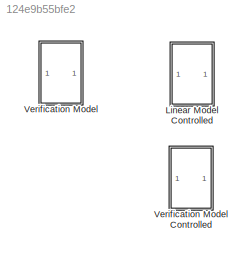
MODEL slx_124e9b55bfe2
KIND model
CONFIG AbsTol = auto
CONFIG EnableMultiTasking = off
CONFIG FixedStep = auto
CONFIG MaxStep = auto
CONFIG MinStep = auto
CONFIG RelTol = 1e-3
CONFIG SampleTimeConstraint = Unconstrained
CONFIG Solver = VariableStepAuto
CONFIG SolverName = VariableStepAuto
CONFIG StartTime = 0.0
CONFIG StopTime = 15
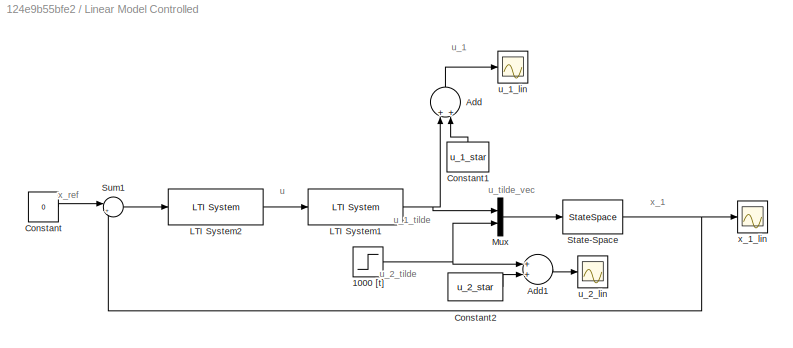
BLOCK [SubSystem] Linear Model Controlled
  Commented = on
  Ports = []
  RequestExecContextInheritance = off
BLOCK [Step] Linear Model Controlled/1000 [t]
  After = 1000 * g
  SampleTime = 0
  Time = 0
BLOCK [Sum] Linear Model Controlled/Add
  InputSameDT = off
  OutDataTypeStr = Inherit: Inherit via internal rule
  Ports = [2, 1]
  SaturateOnIntegerOverflow = off
BLOCK [Sum] Linear Model Controlled/Add1
  Commented = on
  InputSameDT = off
  OutDataTypeStr = Inherit: Inherit via internal rule
  Ports = [2, 1]
  SaturateOnIntegerOverflow = off
BLOCK [Constant] Linear Model Controlled/Constant
  Value = 0
BLOCK [Constant] Linear Model Controlled/Constant1
  Value = u_1_star
BLOCK [Constant] Linear Model Controlled/Constant2
  Commented = on
  Value = u_2_star
BLOCK [Reference] Linear Model Controlled/LTI System1  REF=cstblocks/LTI System
  Ports = [1, 1]
  SourceBlock = cstblocks/LTI System
  SourceProductBaseCode = CT
  SourceProductName = Control System Toolbox
  SourceType = LTI Block
BLOCK [Reference] Linear Model Controlled/LTI System2  REF=cstblocks/LTI System
  Ports = [1, 1]
  SourceBlock = cstblocks/LTI System
  SourceProductBaseCode = CT
  SourceProductName = Control System Toolbox
  SourceType = LTI Block
BLOCK [Mux] Linear Model Controlled/Mux
  DisplayOption = bar
  Inputs = 2
  Ports = [2, 1]
BLOCK [StateSpace] Linear Model Controlled/State-Space
  A = A_sys
  B = B_sys
  C = C_sys
  D = D_sys
  InitialCondition = 0
  Ports = [1, 1]
BLOCK [Sum] Linear Model Controlled/Sum1
  IconShape = round
  InputSameDT = off
  Inputs = |+-
  OutDataTypeStr = Inherit: Inherit via internal rule
  Ports = [2, 1]
  SaturateOnIntegerOverflow = off
BLOCK [Scope] Linear Model Controlled/u_1_lin
  Floating = off
  NumInputPorts = 1
  Ports = [1]
  ScopeSpecificationString = Simulink.scopes.TimeScopeBlockCfg('CurrentConfiguration', extmgr.ConfigurationSet(extmgr.Configuration('Core','General UI',true),extmgr.Configuration('Core','Source UI',true),extmgr.Configuration('Sources','WiredSimulink',true,'DataLoggingVariableName','u_1_lin','DataLoggingSaveFormat','Array','DataLoggingLimitDataPoints',true,'DataLoggingDecimation','1','DataLogging',true),extmgr.Configuration('V...<+1649ch>
BLOCK [Scope] Linear Model Controlled/u_2_lin
  Commented = on
  Floating = off
  NumInputPorts = 1
  Ports = [1]
  ScopeSpecificationString = Simulink.scopes.TimeScopeBlockCfg('CurrentConfiguration', extmgr.ConfigurationSet(extmgr.Configuration('Core','General UI',true),extmgr.Configuration('Core','Source UI',true),extmgr.Configuration('Sources','WiredSimulink',true,'DataLoggingVariableName','u_2_lin','DataLoggingSaveFormat','Array','DataLoggingLimitDataPoints',true,'DataLoggingDecimation','1','DataLogging',true),extmgr.Configuration('V...<+1646ch>
BLOCK [Scope] Linear Model Controlled/x_1_lin
  Floating = off
  NumInputPorts = 1
  Ports = [1]
  ScopeSpecificationString = Simulink.scopes.TimeScopeBlockCfg('CurrentConfiguration', extmgr.ConfigurationSet(extmgr.Configuration('Core','General UI',true),extmgr.Configuration('Core','Source UI',true),extmgr.Configuration('Sources','WiredSimulink',true,'DataLoggingVariableName','x_1_lin','DataLoggingSaveFormat','Array','DataLoggingLimitDataPoints',true,'DataLoggingDecimation','1','DataLogging',true),extmgr.Configuration('V...<+1655ch>
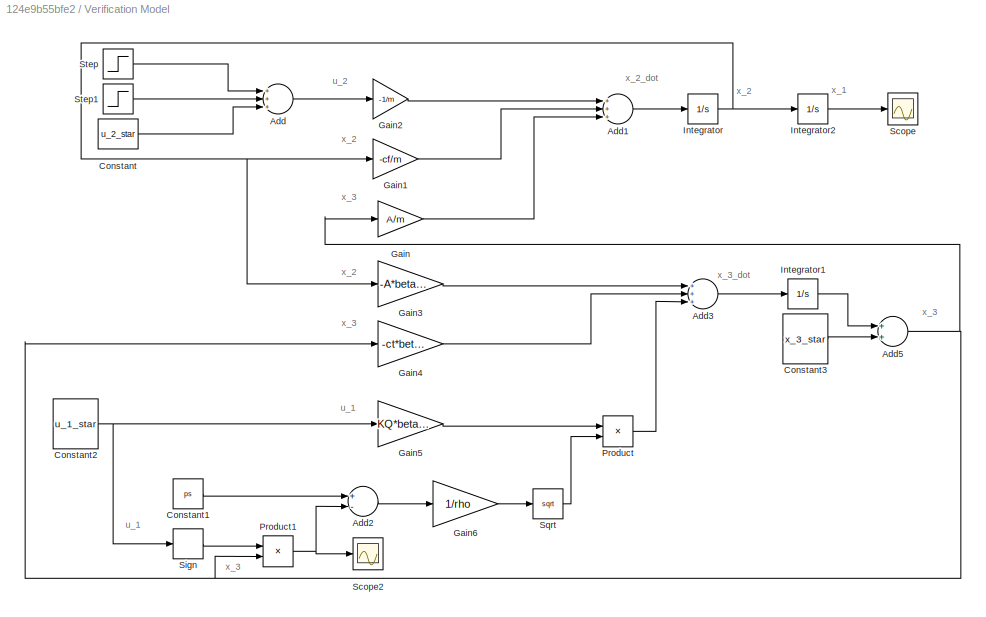
BLOCK [SubSystem] Verification Model
  Ports = []
  RequestExecContextInheritance = off
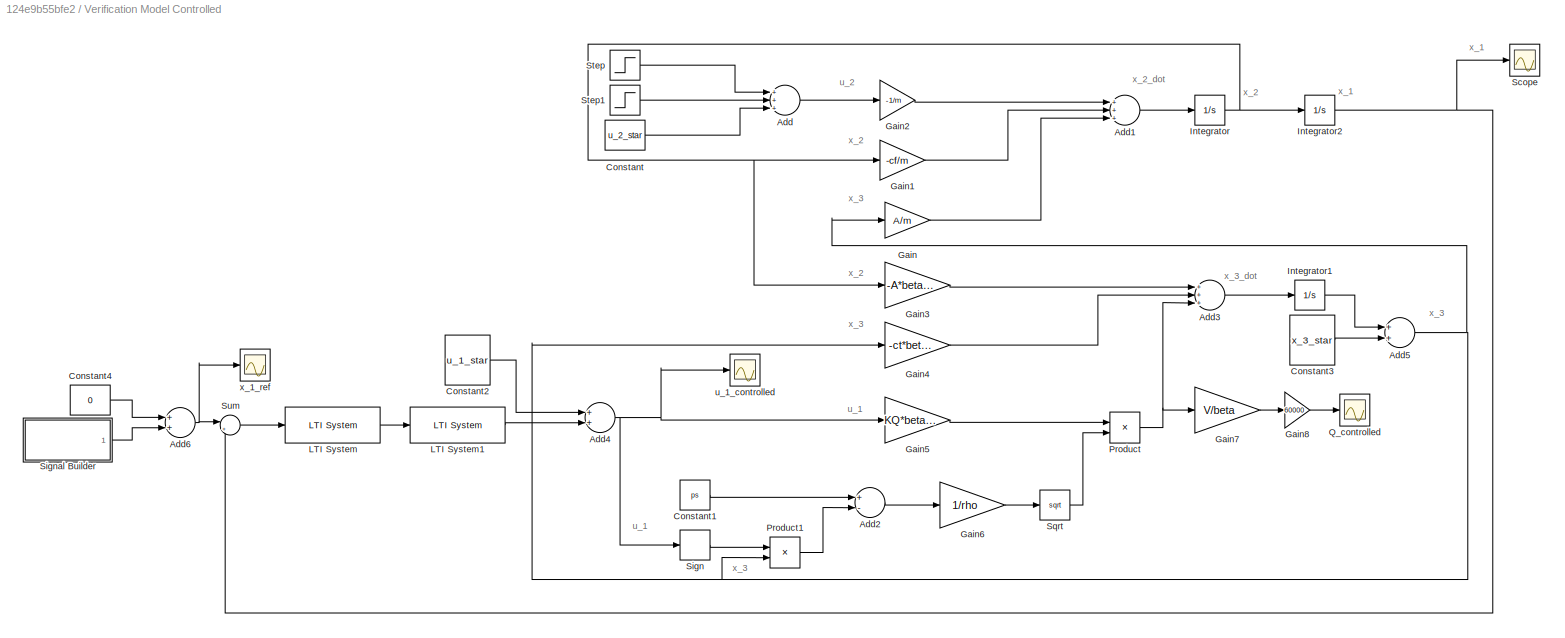
BLOCK [SubSystem] Verification Model Controlled
  Commented = on
  Ports = []
  RequestExecContextInheritance = off
BLOCK [Sum] Verification Model Controlled/Add
  InputSameDT = off
  Inputs = +++
  OutDataTypeStr = Inherit: Inherit via internal rule
  Ports = [3, 1]
  SaturateOnIntegerOverflow = off
BLOCK [Sum] Verification Model Controlled/Add1
  InputSameDT = off
  Inputs = +++
  OutDataTypeStr = Inherit: Inherit via internal rule
  Ports = [3, 1]
  SaturateOnIntegerOverflow = off
BLOCK [Sum] Verification Model Controlled/Add2
  InputSameDT = off
  Inputs = +-
  OutDataTypeStr = Inherit: Inherit via internal rule
  Ports = [2, 1]
  SaturateOnIntegerOverflow = off
BLOCK [Sum] Verification Model Controlled/Add3
  InputSameDT = off
  Inputs = +++
  OutDataTypeStr = Inherit: Inherit via internal rule
  Ports = [3, 1]
  SaturateOnIntegerOverflow = off
BLOCK [Sum] Verification Model Controlled/Add4
  InputSameDT = off
  OutDataTypeStr = Inherit: Inherit via internal rule
  Ports = [2, 1]
  SaturateOnIntegerOverflow = off
BLOCK [Sum] Verification Model Controlled/Add5
  InputSameDT = off
  OutDataTypeStr = Inherit: Inherit via internal rule
  Ports = [2, 1]
  SaturateOnIntegerOverflow = off
BLOCK [Sum] Verification Model Controlled/Add6
  InputSameDT = off
  OutDataTypeStr = Inherit: Inherit via internal rule
  Ports = [2, 1]
  SaturateOnIntegerOverflow = off
BLOCK [Constant] Verification Model Controlled/Constant
  Value = u_2_star
BLOCK [Constant] Verification Model Controlled/Constant1
  Value = ps
BLOCK [Constant] Verification Model Controlled/Constant2
  Value = u_1_star
BLOCK [Constant] Verification Model Controlled/Constant3
  Value = x_3_star
BLOCK [Constant] Verification Model Controlled/Constant4
  Value = 0
BLOCK [Gain] Verification Model Controlled/Gain
  Gain = A/m
  OutDataTypeStr = Inherit: Inherit via internal rule
  ParamDataTypeStr = Inherit: Inherit via internal rule
  SaturateOnIntegerOverflow = off
BLOCK [Gain] Verification Model Controlled/Gain1
  Gain = -cf/m
  OutDataTypeStr = Inherit: Inherit via internal rule
  ParamDataTypeStr = Inherit: Inherit via internal rule
  SaturateOnIntegerOverflow = off
BLOCK [Gain] Verification Model Controlled/Gain2
  Gain = -1/m
  OutDataTypeStr = Inherit: Inherit via internal rule
  ParamDataTypeStr = Inherit: Inherit via internal rule
  SaturateOnIntegerOverflow = off
BLOCK [Gain] Verification Model Controlled/Gain3
  Gain = -A*beta/V
  OutDataTypeStr = Inherit: Inherit via internal rule
  ParamDataTypeStr = Inherit: Inherit via internal rule
  SaturateOnIntegerOverflow = off
BLOCK [Gain] Verification Model Controlled/Gain4
  Gain = -ct*beta/V
  OutDataTypeStr = Inherit: Inherit via internal rule
  ParamDataTypeStr = Inherit: Inherit via internal rule
  SaturateOnIntegerOverflow = off
BLOCK [Gain] Verification Model Controlled/Gain5
  Gain = KQ*beta/V
  OutDataTypeStr = Inherit: Inherit via internal rule
  ParamDataTypeStr = Inherit: Inherit via internal rule
  SaturateOnIntegerOverflow = off
BLOCK [Gain] Verification Model Controlled/Gain6
  Gain = 1/rho
  OutDataTypeStr = Inherit: Inherit via internal rule
  ParamDataTypeStr = Inherit: Inherit via internal rule
  SaturateOnIntegerOverflow = off
BLOCK [Gain] Verification Model Controlled/Gain7
  Gain = V/beta
  OutDataTypeStr = Inherit: Inherit via internal rule
  ParamDataTypeStr = Inherit: Inherit via internal rule
  SaturateOnIntegerOverflow = off
BLOCK [Gain] Verification Model Controlled/Gain8
  Gain = 60000
  OutDataTypeStr = Inherit: Inherit via internal rule
  ParamDataTypeStr = Inherit: Inherit via internal rule
  SaturateOnIntegerOverflow = off
BLOCK [Integrator] Verification Model Controlled/Integrator
  Ports = [1, 1]
BLOCK [Integrator] Verification Model Controlled/Integrator1
  Ports = [1, 1]
BLOCK [Integrator] Verification Model Controlled/Integrator2
  Ports = [1, 1]
BLOCK [Reference] Verification Model Controlled/LTI System  REF=cstblocks/LTI System
  Ports = [1, 1]
  SourceBlock = cstblocks/LTI System
  SourceProductBaseCode = CT
  SourceProductName = Control System Toolbox
  SourceType = LTI Block
BLOCK [Reference] Verification Model Controlled/LTI System1  REF=cstblocks/LTI System
  Ports = [1, 1]
  SourceBlock = cstblocks/LTI System
  SourceProductBaseCode = CT
  SourceProductName = Control System Toolbox
  SourceType = LTI Block
BLOCK [Product] Verification Model Controlled/Product
  InputSameDT = off
  OutDataTypeStr = Inherit: Inherit via internal rule
  Ports = [2, 1]
  RndMeth = Floor
  SaturateOnIntegerOverflow = off
BLOCK [Product] Verification Model Controlled/Product1
  InputSameDT = off
  OutDataTypeStr = Inherit: Inherit via internal rule
  Ports = [2, 1]
  RndMeth = Floor
  SaturateOnIntegerOverflow = off
BLOCK [Scope] Verification Model Controlled/Q_controlled
  Floating = off
  NumInputPorts = 1
  Ports = [1]
  ScopeSpecificationString = Simulink.scopes.TimeScopeBlockCfg('CurrentConfiguration', extmgr.ConfigurationSet(extmgr.Configuration('Core','General UI',true),extmgr.Configuration('Core','Source UI',true),extmgr.Configuration('Sources','WiredSimulink',true,'DataLoggingVariableName','Q_controlled','DataLogging',true,'DataLoggingSaveFormat','Array'),extmgr.Configuration('Visuals','Time Domain',true,'SerializedDisplays',{struct('...<+1450ch>
BLOCK [Scope] Verification Model Controlled/Scope
  Floating = off
  NumInputPorts = 1
  Ports = [1]
  ScopeSpecificationString = Simulink.scopes.TimeScopeBlockCfg('CurrentConfiguration', extmgr.ConfigurationSet(extmgr.Configuration('Core','General UI',true),extmgr.Configuration('Core','Source UI',true),extmgr.Configuration('Sources','WiredSimulink',true,'DataLoggingVariableName','x_1_ver_controlled','DataLogging',true,'DataLoggingSaveFormat','Array'),extmgr.Configuration('Visuals','Time Domain',true,'SerializedDisplays',{st...<+1476ch>
BLOCK [Signum] Verification Model Controlled/Sign
  ZeroCross = off
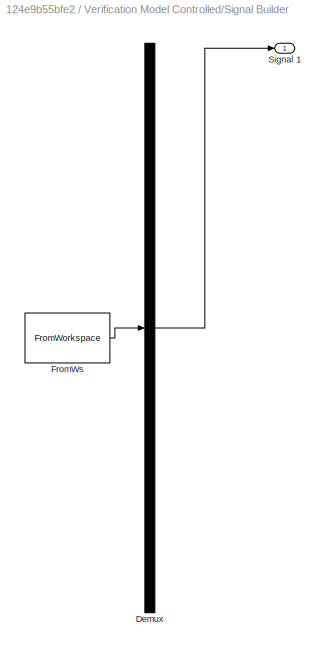
BLOCK [SubSystem] Verification Model Controlled/Signal Builder
  ClipboardFcn = sigbuilder_block('clipboard');
  CloseFcn = sigbuilder_block('close');
  ContinueFcn = sigbuilder_block('continue');
  CopyFcn = sigbuilder_block('copy');
  DeleteFcn = sigbuilder_block('delete');
  LoadFcn = sigbuilder_block('load');
  MaskHideContents = on
  ModelCloseFcn = sigbuilder_block('modelClose');
  NameChangeFcn = sigbuilder_block('namechange');
  OpenFcn = sigbuilder_block('open',[437.6 199.2 550.4 400 ]);
  PauseFcn = sigbuilder_block('pause');
  Ports = [0, 1]
  PreSaveFcn = sigbuilder_block('preSave');
  RequestExecContextInheritance = off
  StartFcn = sigbuilder_block('start');
  StopFcn = sigbuilder_block('stop');
  Tag = STV Subsys
BLOCK [Demux] Verification Model Controlled/Signal Builder/Demux
  Outputs = 1
  Ports = [1, 1]
  Tag = STV Demux
BLOCK [FromWorkspace] Verification Model Controlled/Signal Builder/FromWs
  SampleTime = 0
  Tag = STV FromWs
  VariableName = tuvar
  ZeroCross = on
BLOCK [Outport] Verification Model Controlled/Signal Builder/Signal 1
  IconDisplay = Port number
  Tag = STV Outport
BLOCK [Sqrt] Verification Model Controlled/Sqrt
BLOCK [Step] Verification Model Controlled/Step
  After = 1000 * g
  SampleTime = 0
  Time = 0
BLOCK [Step] Verification Model Controlled/Step1
  After = -1000 * g
  Commented = on
  SampleTime = 0
BLOCK [Sum] Verification Model Controlled/Sum
  IconShape = round
  InputSameDT = off
  Inputs = |+-
  OutDataTypeStr = Inherit: Inherit via internal rule
  Ports = [2, 1]
  SaturateOnIntegerOverflow = off
BLOCK [Scope] Verification Model Controlled/u_1_controlled
  Floating = off
  NumInputPorts = 1
  Ports = [1]
  ScopeSpecificationString = Simulink.scopes.TimeScopeBlockCfg('CurrentConfiguration', extmgr.ConfigurationSet(extmgr.Configuration('Core','General UI',true),extmgr.Configuration('Core','Source UI',true),extmgr.Configuration('Sources','WiredSimulink',true,'DataLoggingVariableName','u_1_controlled','DataLogging',true,'DataLoggingSaveFormat','Array'),extmgr.Configuration('Visuals','Time Domain',true,'SerializedDisplays',{struct...<+1447ch>
BLOCK [Scope] Verification Model Controlled/x_1_ref
  Floating = off
  NumInputPorts = 1
  Ports = [1]
  ScopeSpecificationString = Simulink.scopes.TimeScopeBlockCfg('CurrentConfiguration', extmgr.ConfigurationSet(extmgr.Configuration('Core','General UI',true),extmgr.Configuration('Core','Source UI',true),extmgr.Configuration('Sources','WiredSimulink',true,'DataLoggingVariableName','x_1_ref','DataLogging',true,'DataLoggingSaveFormat','Array'),extmgr.Configuration('Visuals','Time Domain',true,'SerializedDisplays',{struct('MinYL...<+1463ch>
BLOCK [Sum] Verification Model/Add
  InputSameDT = off
  Inputs = +++
  OutDataTypeStr = Inherit: Inherit via internal rule
  Ports = [3, 1]
  SaturateOnIntegerOverflow = off
BLOCK [Sum] Verification Model/Add1
  InputSameDT = off
  Inputs = +++
  OutDataTypeStr = Inherit: Inherit via internal rule
  Ports = [3, 1]
  SaturateOnIntegerOverflow = off
BLOCK [Sum] Verification Model/Add2
  InputSameDT = off
  Inputs = +-
  OutDataTypeStr = Inherit: Inherit via internal rule
  Ports = [2, 1]
  SaturateOnIntegerOverflow = off
BLOCK [Sum] Verification Model/Add3
  InputSameDT = off
  Inputs = +++
  OutDataTypeStr = Inherit: Inherit via internal rule
  Ports = [3, 1]
  SaturateOnIntegerOverflow = off
BLOCK [Sum] Verification Model/Add5
  InputSameDT = off
  OutDataTypeStr = Inherit: Inherit via internal rule
  Ports = [2, 1]
  SaturateOnIntegerOverflow = off
BLOCK [Constant] Verification Model/Constant
  Value = u_2_star
BLOCK [Constant] Verification Model/Constant1
  Value = ps
BLOCK [Constant] Verification Model/Constant2
  Value = u_1_star
BLOCK [Constant] Verification Model/Constant3
  Value = x_3_star
BLOCK [Gain] Verification Model/Gain
  Gain = A/m
  OutDataTypeStr = Inherit: Inherit via internal rule
  ParamDataTypeStr = Inherit: Inherit via internal rule
  SaturateOnIntegerOverflow = off
BLOCK [Gain] Verification Model/Gain1
  Gain = -cf/m
  OutDataTypeStr = Inherit: Inherit via internal rule
  ParamDataTypeStr = Inherit: Inherit via internal rule
  SaturateOnIntegerOverflow = off
BLOCK [Gain] Verification Model/Gain2
  Gain = -1/m
  OutDataTypeStr = Inherit: Inherit via internal rule
  ParamDataTypeStr = Inherit: Inherit via internal rule
  SaturateOnIntegerOverflow = off
BLOCK [Gain] Verification Model/Gain3
  Gain = -A*beta/V
  OutDataTypeStr = Inherit: Inherit via internal rule
  ParamDataTypeStr = Inherit: Inherit via internal rule
  SaturateOnIntegerOverflow = off
BLOCK [Gain] Verification Model/Gain4
  Gain = -ct*beta/V
  OutDataTypeStr = Inherit: Inherit via internal rule
  ParamDataTypeStr = Inherit: Inherit via internal rule
  SaturateOnIntegerOverflow = off
BLOCK [Gain] Verification Model/Gain5
  Gain = KQ*beta/V
  OutDataTypeStr = Inherit: Inherit via internal rule
  ParamDataTypeStr = Inherit: Inherit via internal rule
  SaturateOnIntegerOverflow = off
BLOCK [Gain] Verification Model/Gain6
  Gain = 1/rho
  OutDataTypeStr = Inherit: Inherit via internal rule
  ParamDataTypeStr = Inherit: Inherit via internal rule
  SaturateOnIntegerOverflow = off
BLOCK [Integrator] Verification Model/Integrator
  Ports = [1, 1]
BLOCK [Integrator] Verification Model/Integrator1
  Ports = [1, 1]
BLOCK [Integrator] Verification Model/Integrator2
  Ports = [1, 1]
BLOCK [Product] Verification Model/Product
  InputSameDT = off
  OutDataTypeStr = Inherit: Inherit via internal rule
  Ports = [2, 1]
  RndMeth = Floor
  SaturateOnIntegerOverflow = off
BLOCK [Product] Verification Model/Product1
  InputSameDT = off
  OutDataTypeStr = Inherit: Inherit via internal rule
  Ports = [2, 1]
  RndMeth = Floor
  SaturateOnIntegerOverflow = off
BLOCK [Scope] Verification Model/Scope
  Floating = off
  NumInputPorts = 1
  Ports = [1]
  ScopeSpecificationString = Simulink.scopes.TimeScopeBlockCfg('CurrentConfiguration', extmgr.ConfigurationSet(extmgr.Configuration('Core','General UI',true),extmgr.Configuration('Core','Source UI',true),extmgr.Configuration('Sources','WiredSimulink',true,'DataLoggingVariableName','x_1','DataLogging',true,'DataLoggingSaveFormat','Array'),extmgr.Configuration('Visuals','Time Domain',true,'SerializedDisplays',{struct('MinYLimRe...<+1461ch>
BLOCK [Scope] Verification Model/Scope2
  Floating = off
  NumInputPorts = 1
  Ports = [1]
  ScopeSpecificationString = Simulink.scopes.TimeScopeBlockCfg('CurrentConfiguration', extmgr.ConfigurationSet(extmgr.Configuration('Core','General UI',true),extmgr.Configuration('Core','Source UI',true),extmgr.Configuration('Sources','WiredSimulink',true,'DataLoggingVariableName','ScopeData2'),extmgr.Configuration('Visuals','Time Domain',true,'SerializedDisplays',{struct('MinYLimReal','-726044.34692','MaxYLimReal','2913419.1...<+1462ch>
BLOCK [Signum] Verification Model/Sign
  ZeroCross = off
BLOCK [Sqrt] Verification Model/Sqrt
BLOCK [Step] Verification Model/Step
  After = 1000 * g
  SampleTime = 0
  Time = 0
BLOCK [Step] Verification Model/Step1
  After = -1000 * g
  SampleTime = 0
  Time = 5
ANNOTATION Linear Model Controlled: u
ANNOTATION Linear Model Controlled: u_1
ANNOTATION Linear Model Controlled: u_1_tilde
ANNOTATION Linear Model Controlled: u_2_tilde
ANNOTATION Linear Model Controlled: u_tilde_vec
ANNOTATION Linear Model Controlled: x_1
ANNOTATION Linear Model Controlled: x_ref
ANNOTATION Verification Model: u_1
ANNOTATION Verification Model: u_2
ANNOTATION Verification Model: x_1
ANNOTATION Verification Model: x_2
ANNOTATION Verification Model: x_2_dot
ANNOTATION Verification Model: x_3
ANNOTATION Verification Model: x_3_dot
ANNOTATION Verification Model Controlled: x_1
ANNOTATION Verification Model Controlled: u_1
ANNOTATION Verification Model Controlled: u_2
ANNOTATION Verification Model Controlled: x_2
ANNOTATION Verification Model Controlled: x_2_dot
ANNOTATION Verification Model Controlled: x_3
ANNOTATION Verification Model Controlled: x_3_dot
NET Linear Model Controlled/1000 [t]:1 -> Linear Model Controlled/Add1:1, Linear Model Controlled/Mux:2
LINE Linear Model Controlled/Add1:1 -> Linear Model Controlled/u_2_lin:1
LINE Linear Model Controlled/Add:1 -> Linear Model Controlled/u_1_lin:1
LINE Linear Model Controlled/Constant1:1 -> Linear Model Controlled/Add:2
LINE Linear Model Controlled/Constant2:1 -> Linear Model Controlled/Add1:2
LINE Linear Model Controlled/Constant:1 -> Linear Model Controlled/Sum1:1
NET Linear Model Controlled/LTI System1:1 -> Linear Model Controlled/Add:1, Linear Model Controlled/Mux:1
LINE Linear Model Controlled/LTI System2:1 -> Linear Model Controlled/LTI System1:1
LINE Linear Model Controlled/Mux:1 -> Linear Model Controlled/State-Space:1
NET Linear Model Controlled/State-Space:1 -> Linear Model Controlled/Sum1:2, Linear Model Controlled/x_1_lin:1
LINE Linear Model Controlled/Sum1:1 -> Linear Model Controlled/LTI System2:1
LINE Verification Model Controlled/Add1:1 -> Verification Model Controlled/Integrator:1
LINE Verification Model Controlled/Add2:1 -> Verification Model Controlled/Gain6:1
LINE Verification Model Controlled/Add3:1 -> Verification Model Controlled/Integrator1:1
NET Verification Model Controlled/Add4:1 -> Verification Model Controlled/Gain5:1, Verification Model Controlled/Sign:1, Verification Model Controlled/u_1_controlled:1
NET Verification Model Controlled/Add5:1 -> Verification Model Controlled/Gain4:1, Verification Model Controlled/Gain:1, Verification Model Controlled/Product1:2
NET Verification Model Controlled/Add6:1 -> Verification Model Controlled/Sum:1, Verification Model Controlled/x_1_ref:1
LINE Verification Model Controlled/Add:1 -> Verification Model Controlled/Gain2:1
LINE Verification Model Controlled/Constant1:1 -> Verification Model Controlled/Add2:1
LINE Verification Model Controlled/Constant2:1 -> Verification Model Controlled/Add4:1
LINE Verification Model Controlled/Constant3:1 -> Verification Model Controlled/Add5:2
LINE Verification Model Controlled/Constant4:1 -> Verification Model Controlled/Add6:1
LINE Verification Model Controlled/Constant:1 -> Verification Model Controlled/Add:3
LINE Verification Model Controlled/Gain1:1 -> Verification Model Controlled/Add1:2
LINE Verification Model Controlled/Gain2:1 -> Verification Model Controlled/Add1:1
LINE Verification Model Controlled/Gain3:1 -> Verification Model Controlled/Add3:1
LINE Verification Model Controlled/Gain4:1 -> Verification Model Controlled/Add3:2
LINE Verification Model Controlled/Gain5:1 -> Verification Model Controlled/Product:1
LINE Verification Model Controlled/Gain6:1 -> Verification Model Controlled/Sqrt:1
LINE Verification Model Controlled/Gain7:1 -> Verification Model Controlled/Gain8:1
LINE Verification Model Controlled/Gain8:1 -> Verification Model Controlled/Q_controlled:1
LINE Verification Model Controlled/Gain:1 -> Verification Model Controlled/Add1:3
LINE Verification Model Controlled/Integrator1:1 -> Verification Model Controlled/Add5:1
NET Verification Model Controlled/Integrator2:1 -> Verification Model Controlled/Scope:1, Verification Model Controlled/Sum:2
NET Verification Model Controlled/Integrator:1 -> Verification Model Controlled/Gain1:1, Verification Model Controlled/Gain3:1, Verification Model Controlled/Integrator2:1
LINE Verification Model Controlled/LTI System1:1 -> Verification Model Controlled/Add4:2
LINE Verification Model Controlled/LTI System:1 -> Verification Model Controlled/LTI System1:1
LINE Verification Model Controlled/Product1:1 -> Verification Model Controlled/Add2:2
NET Verification Model Controlled/Product:1 -> Verification Model Controlled/Add3:3, Verification Model Controlled/Gain7:1
LINE Verification Model Controlled/Sign:1 -> Verification Model Controlled/Product1:1
LINE Verification Model Controlled/Signal Builder:1 -> Verification Model Controlled/Add6:2
LINE Verification Model Controlled/Sqrt:1 -> Verification Model Controlled/Product:2
LINE Verification Model Controlled/Step1:1 -> Verification Model Controlled/Add:2
LINE Verification Model Controlled/Step:1 -> Verification Model Controlled/Add:1
LINE Verification Model Controlled/Sum:1 -> Verification Model Controlled/LTI System:1
LINE Verification Model/Add1:1 -> Verification Model/Integrator:1
LINE Verification Model/Add2:1 -> Verification Model/Gain6:1
LINE Verification Model/Add3:1 -> Verification Model/Integrator1:1
NET Verification Model/Add5:1 -> Verification Model/Gain4:1, Verification Model/Gain:1, Verification Model/Product1:2
LINE Verification Model/Add:1 -> Verification Model/Gain2:1
LINE Verification Model/Constant1:1 -> Verification Model/Add2:1
NET Verification Model/Constant2:1 -> Verification Model/Gain5:1, Verification Model/Sign:1
LINE Verification Model/Constant3:1 -> Verification Model/Add5:2
LINE Verification Model/Constant:1 -> Verification Model/Add:3
LINE Verification Model/Gain1:1 -> Verification Model/Add1:2
LINE Verification Model/Gain2:1 -> Verification Model/Add1:1
LINE Verification Model/Gain3:1 -> Verification Model/Add3:1
LINE Verification Model/Gain4:1 -> Verification Model/Add3:2
LINE Verification Model/Gain5:1 -> Verification Model/Product:1
LINE Verification Model/Gain6:1 -> Verification Model/Sqrt:1
LINE Verification Model/Gain:1 -> Verification Model/Add1:3
LINE Verification Model/Integrator1:1 -> Verification Model/Add5:1
LINE Verification Model/Integrator2:1 -> Verification Model/Scope:1
NET Verification Model/Integrator:1 -> Verification Model/Gain1:1, Verification Model/Gain3:1, Verification Model/Integrator2:1
NET Verification Model/Product1:1 -> Verification Model/Add2:2, Verification Model/Scope2:1
LINE Verification Model/Product:1 -> Verification Model/Add3:3
LINE Verification Model/Sign:1 -> Verification Model/Product1:1
LINE Verification Model/Sqrt:1 -> Verification Model/Product:2
LINE Verification Model/Step1:1 -> Verification Model/Add:2
LINE Verification Model/Step:1 -> Verification Model/Add:1
note: NET lines group one-source signal fan-out (src -> all destinations, sorted); 1:1 wires keep LINE
